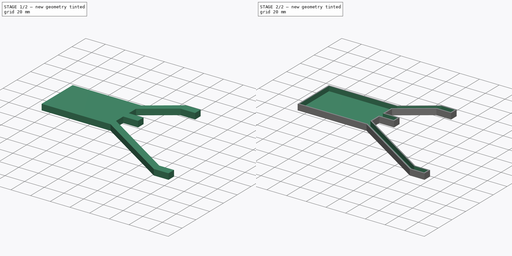
[diagram: build sequence overview — one tinted view per stage of 2, left to right]
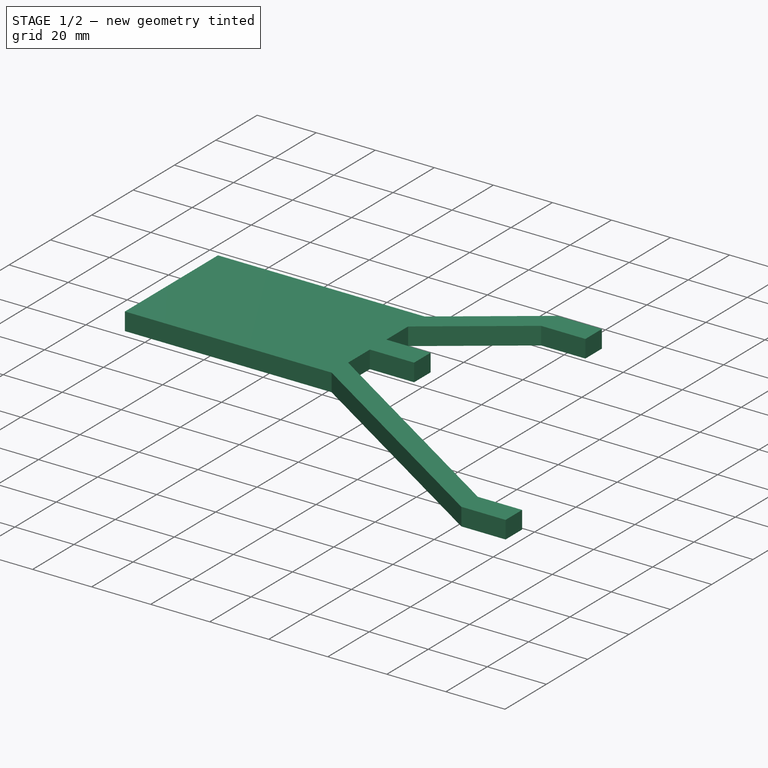
[diagram: stage 1 of 2 — iso view after this stage's code; geometry added in this stage tinted green]
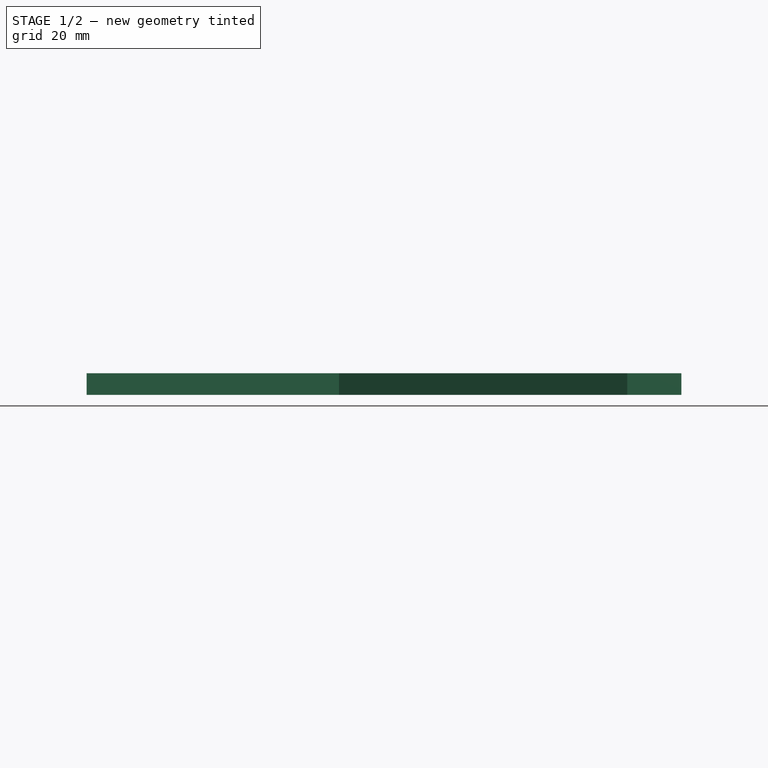
[diagram: stage 1 of 2 — front view after this stage's code; geometry added in this stage tinted green]
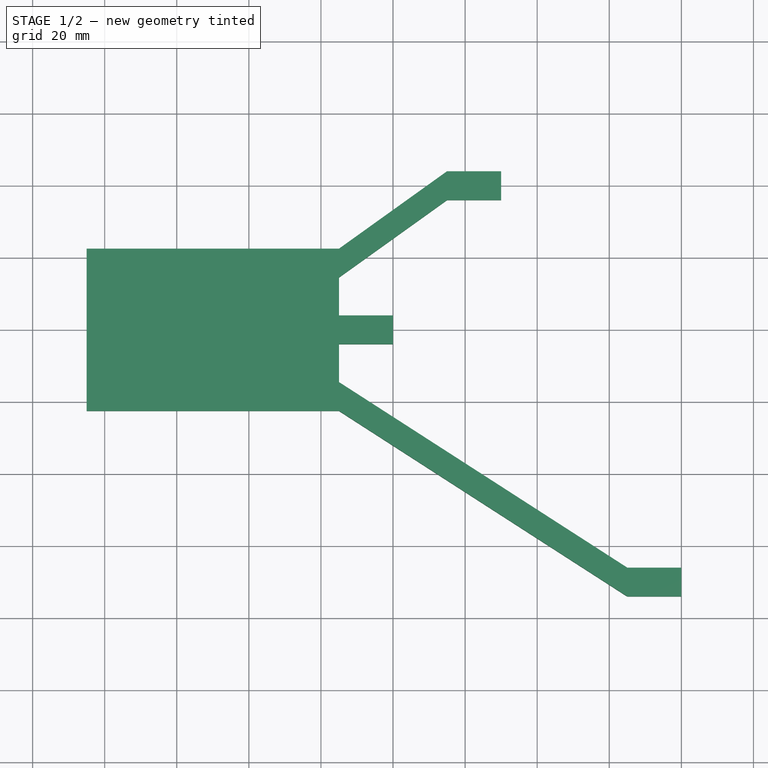
[diagram: stage 1 of 2 — top view after this stage's code; geometry added in this stage tinted green]
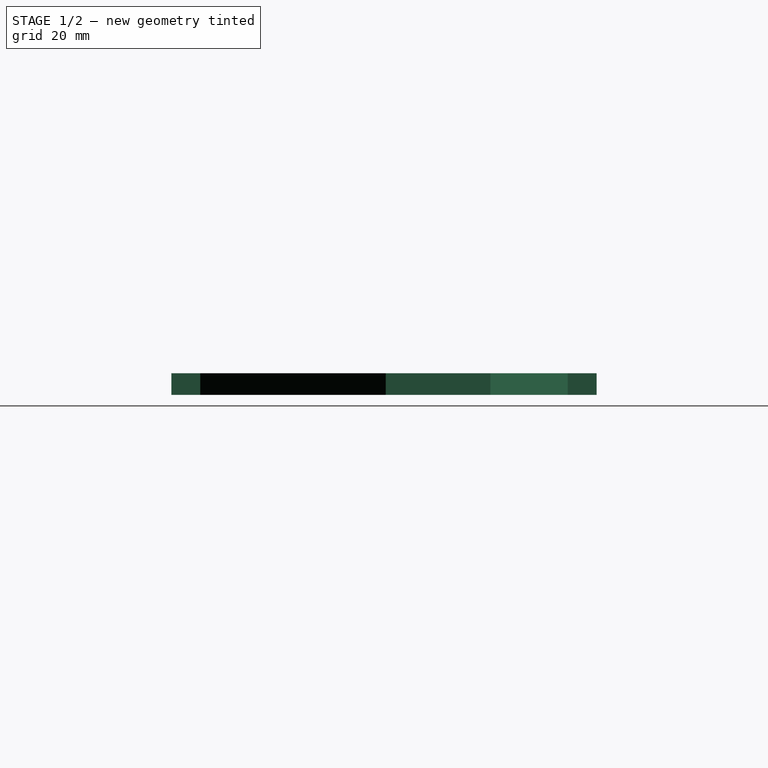
[diagram: stage 1 of 2 — right view after this stage's code; geometry added in this stage tinted green]
FCSTD DOCUMENT  (FreeCAD 0.19R24267 +99 (Git))
Label: Head Tracker
License: All rights reserved
LicenseURL: http://en.wikipedia.org/wiki/All_rights_reserved
objects: Sketcher::SketchObject×1, PartDesign::Pad×1, PartDesign::Thickness×1, PartDesign::Body×1
note: 6 computed .brp shape members not serialized (recipe doc carries the construction recipe); baked Part::Feature solids carry a one-line shape summary decoded from their .brp

FEATURE [Sketcher::SketchObject] Sketch
  FullyConstrained = true
  MapMode = 5
  Support = -> [XY_Plane]
  sketch-geometry (22):
    g0: LineSegment StartX=80 StartY=-74 StartZ=0 EndX=65 EndY=-74 EndZ=0
    g1: LineSegment StartX=65 StartY=-74 StartZ=0 EndX=-15 EndY=-22.5 EndZ=0
    g2: LineSegment StartX=-15 StartY=-22.5 StartZ=0 EndX=-85 EndY=-22.5 EndZ=0
    g3: LineSegment StartX=-85 StartY=-22.5 StartZ=0 EndX=-85 EndY=22.5 EndZ=0
    g4: LineSegment StartX=-85 StartY=22.5 StartZ=0 EndX=-15 EndY=22.5 EndZ=0
    g5: LineSegment StartX=-15 StartY=22.5 StartZ=0 EndX=15 EndY=44 EndZ=0
    g6: LineSegment StartX=15 StartY=44 StartZ=0 EndX=30 EndY=44 EndZ=0
    g7: LineSegment StartX=30 StartY=44 StartZ=0 EndX=30 EndY=36 EndZ=0
    g8: LineSegment StartX=30 StartY=36 StartZ=0 EndX=15 EndY=36 EndZ=0
    g9: LineSegment StartX=15 StartY=36 StartZ=0 EndX=-15 EndY=14.5 EndZ=0
    g10: LineSegment StartX=-15 StartY=14.5 StartZ=0 EndX=-15 EndY=4 EndZ=0
    g11: LineSegment StartX=-15 StartY=4 StartZ=0 EndX=0 EndY=4 EndZ=0
    g12: LineSegment StartX=0 StartY=4 StartZ=0 EndX=0 EndY=-4 EndZ=0
    g13: LineSegment StartX=0 StartY=-4 StartZ=0 EndX=-15 EndY=-4 EndZ=0
    g14: LineSegment StartX=-15 StartY=-4 StartZ=0 EndX=-15 EndY=-14.5 EndZ=0
    g15: LineSegment StartX=-15 StartY=-14.5 StartZ=0 EndX=65 EndY=-66 EndZ=0
    g16: LineSegment StartX=65 StartY=-66 StartZ=0 EndX=80 EndY=-66 EndZ=0
    g17: LineSegment StartX=80 StartY=-66 StartZ=0 EndX=80 EndY=-74 EndZ=0
    g18: GeomPoint X=30 Y=40 Z=0
    g19: GeomPoint X=0 Y=0 Z=0
    g20: GeomPoint X=80 Y=-70 Z=0
    g21: GeomPoint X=-15 Y=-2e-16 Z=0
  constraints (56):
    c: Horizontal(g0)
    c: Coincident(g0,g1)
    c: Coincident(g1,g2)
    c: Horizontal(g2)
    c: Coincident(g2,g3)
    c: Vertical(g3)
    c: Coincident(g3,g4)
    c: Horizontal(g4)
    c: Coincident(g4,g5)
    c: Coincident(g5,g6)
    c: Horizontal(g6)
    c: Coincident(g6,g7)
    c: Vertical(g7)
    c: Coincident(g7,g8)
    c: Coincident(g8,g9)
    c: Coincident(g9,g10)
    c: Vertical(g10)
    c: Coincident(g10,g11)
    c: Horizontal(g11)
    c: Coincident(g11,g12)
    c: Vertical(g12)
    c: Coincident(g12,g13)
    c: Horizontal(g13)
    c: Coincident(g13,g14)
    c: Coincident(g14,g15)
    c: Coincident(g15,g16)
    c: Coincident(g16,g17)
    c: Coincident(g17,g0)
    c: Horizontal(g8)
    c: Horizontal(g16)
    c: Vertical(g17)
    c: DistanceY(g7,g7) = 8
    c: DistanceY(g17,g17) = 8
    c: DistanceY(g12,g12) = 8
    c: Vertical(g15,g0)
    c: Vertical(g8,g5)
    c: Symmetric(g6,g7,g18)
    c: Symmetric(g11,g12,g19)
    c: Symmetric(g16,g0,g20)
    c: DistanceY(g19,g18) = 40
    c: DistanceX(g19,g18) = 30
    c: DistanceY(g20,g19) = 70
    c: DistanceX(g19,g20) = 80
    c: Vertical(g4,g1)
    c: Symmetric(g10,g13,g21)
    c: Symmetric(g9,g14,g21)
    c: Vertical(g10,g13)
    c: Vertical(g4,g9)
    c: DistanceY(g9,g4) = 8
    c: DistanceY(g1,g14) = 8
    c: DistanceX(g6,g6) = 15
    c: Equal(g8,g13)
    c: Equal(g13,g16)
    c: Coincident(g19,g-1)
    c: DistanceX(g4,g4) = 70
    c: DistanceY(g3,g3) = 45
FEATURE [PartDesign::Pad] Pad
  Direction = (1,1,1)
  Length = 6
  Length2 = 100
  Profile = -> Sketch
  Refine = true
  Type = 0
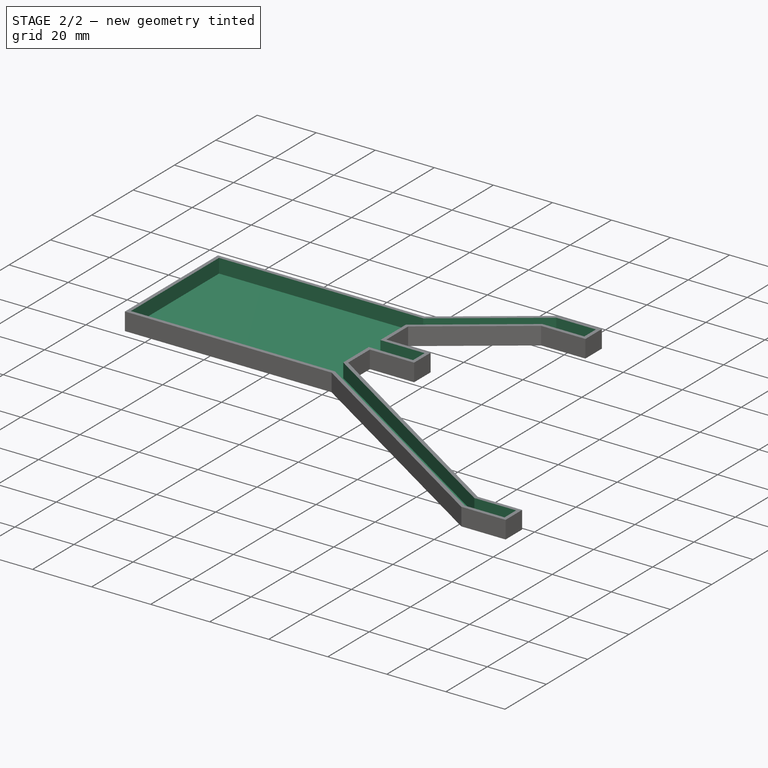
[diagram: stage 2 of 2 — iso view after this stage's code; geometry added in this stage tinted green]
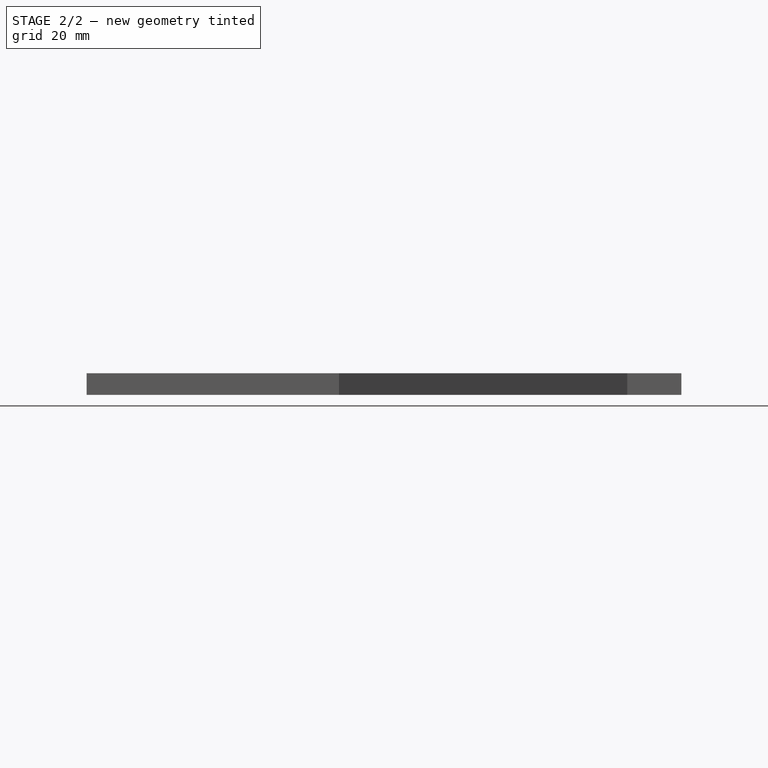
[diagram: stage 2 of 2 — front view after this stage's code; geometry added in this stage tinted green]
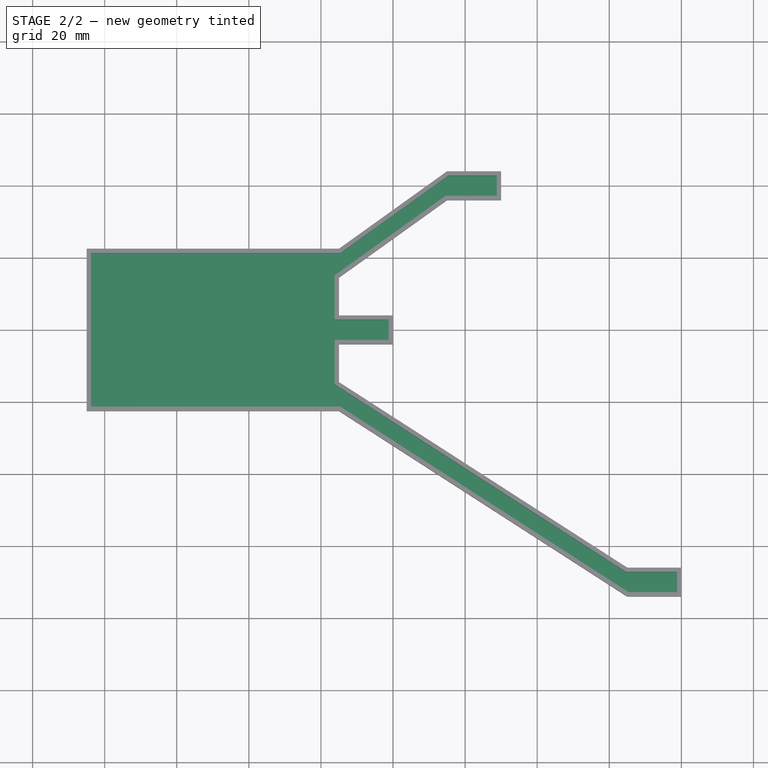
[diagram: stage 2 of 2 — top view after this stage's code; geometry added in this stage tinted green]
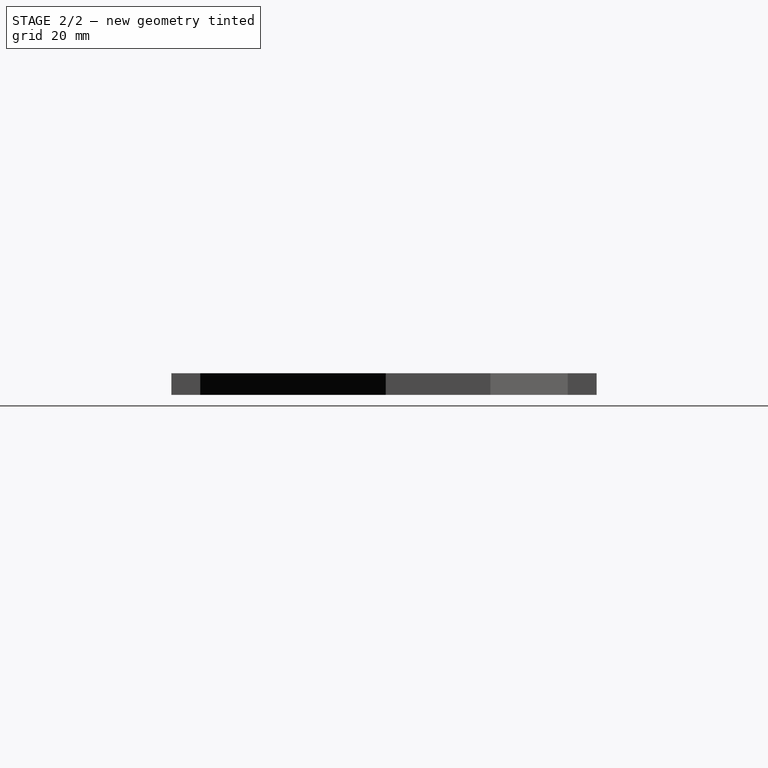
[diagram: stage 2 of 2 — right view after this stage's code; geometry added in this stage tinted green]
FEATURE [PartDesign::Thickness] Thickness
  Base = -> Pad [Face20]
  BaseFeature = -> Pad
  Intersection = false
  Join = 1
  Mode = 0
  Refine = true
  Reversed = true
  SupportTransform = false
  Value = 1.2
FEATURE [PartDesign::Body] Body
  Group = -> [Sketch,Pad,Thickness]
  Origin = -> Origin
  Tip = -> Thickness
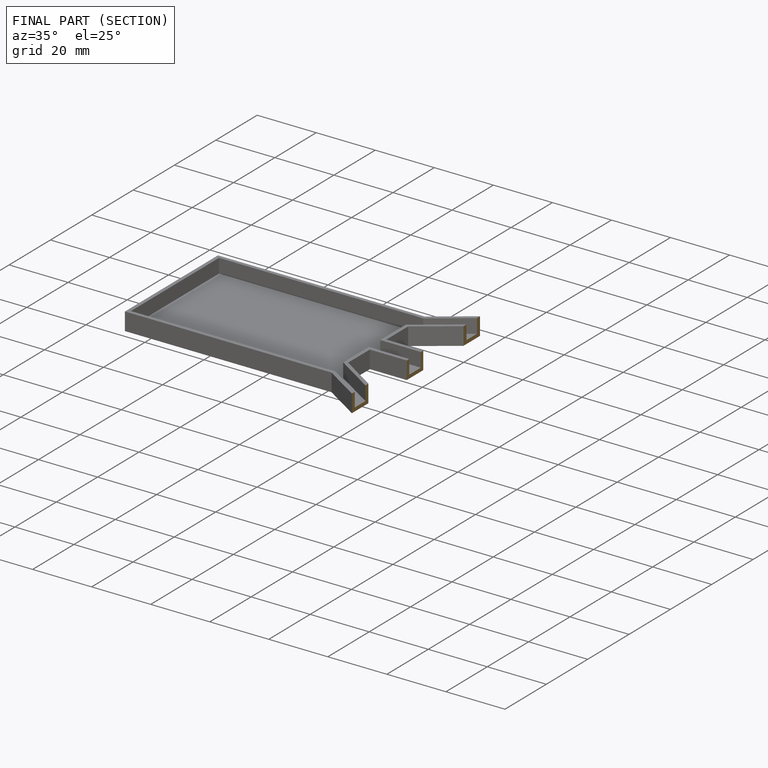
[diagram: finished part — half-section view (interior)]
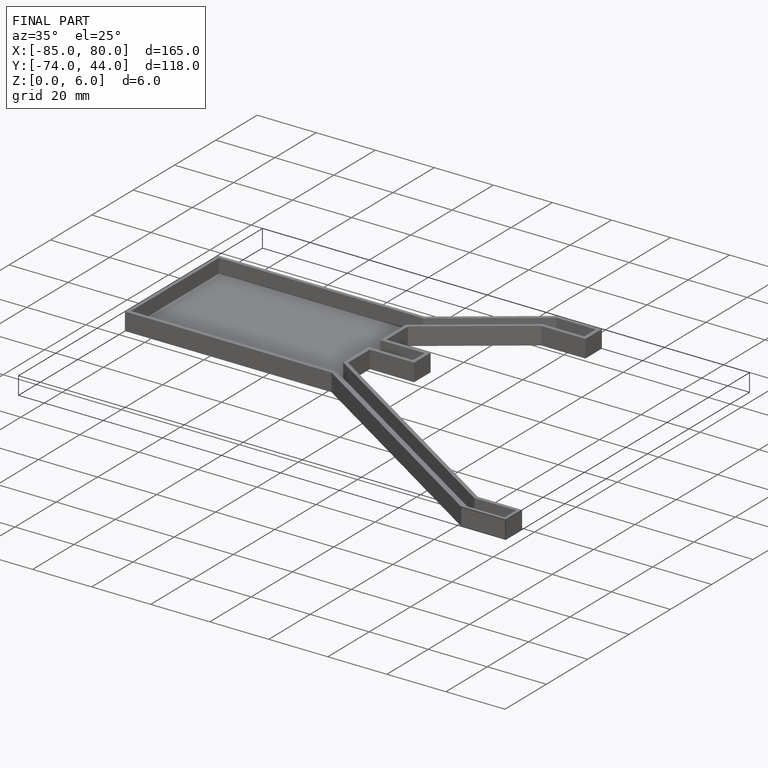
[diagram: finished part — iso view with bounding-box wireframe]
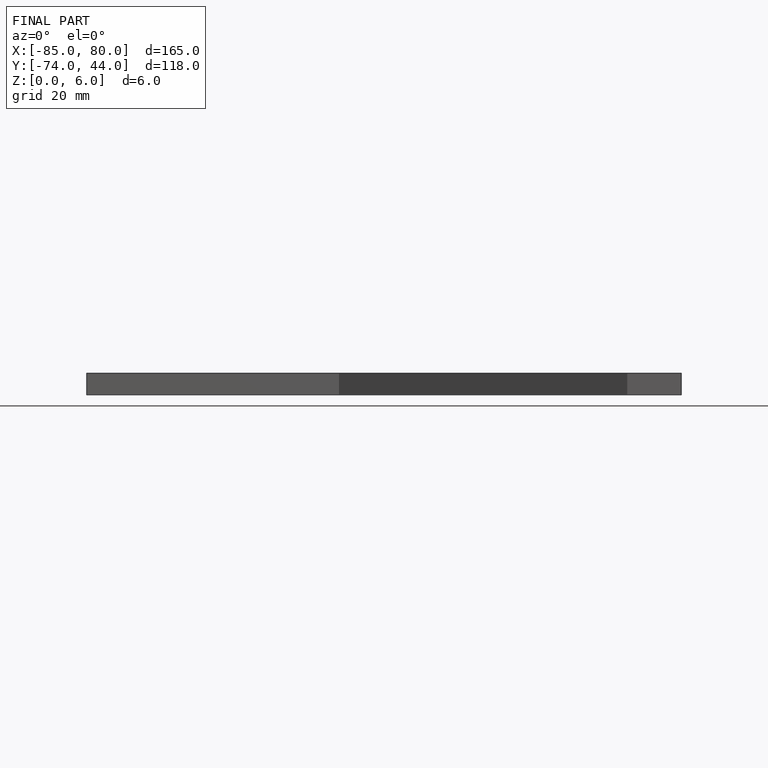
[diagram: finished part — front view with bounding-box wireframe]
